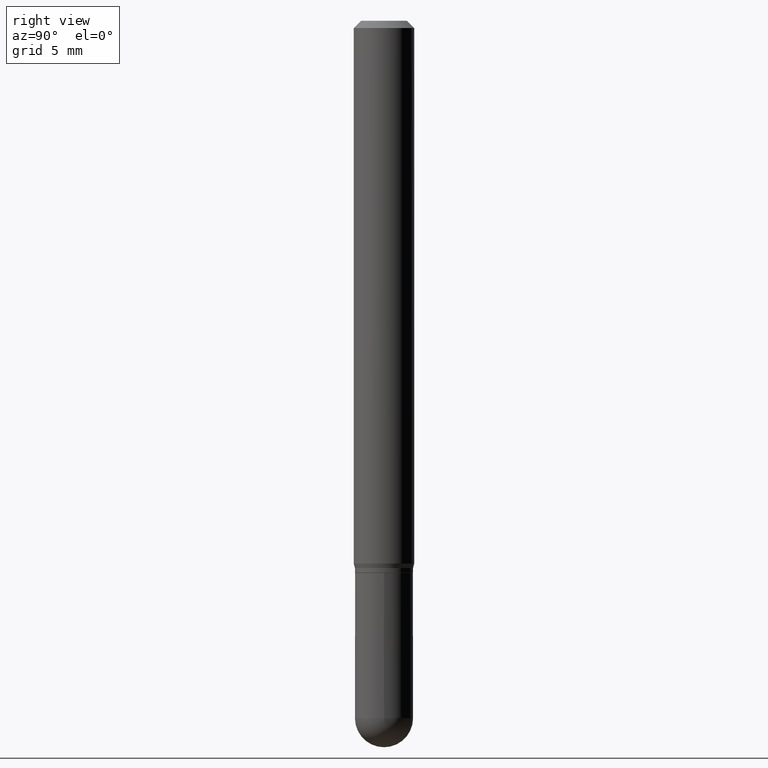
[diagram: clean part render]
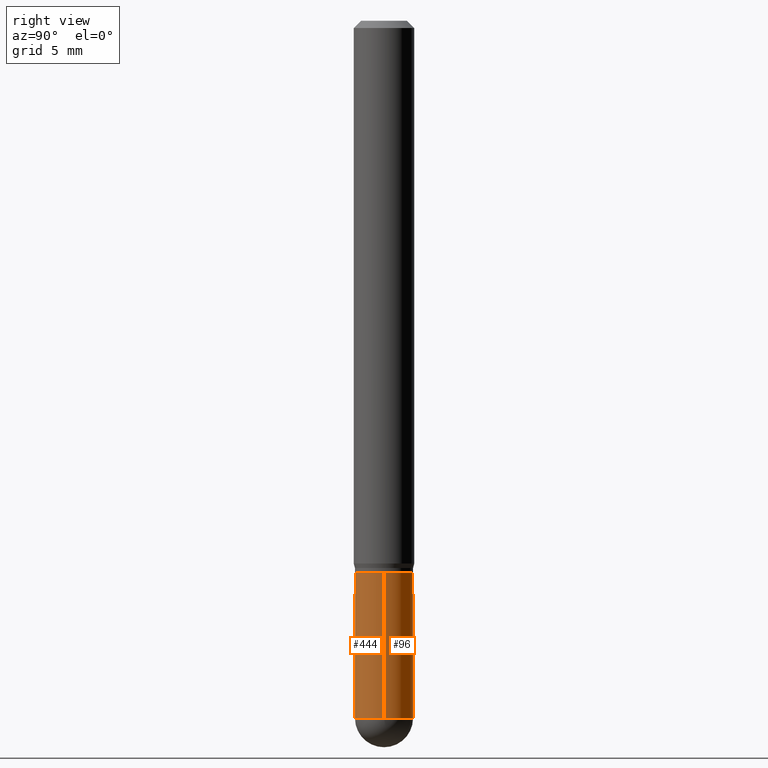
[diagram: same view with one multi-face feature highlighted, each face labeled with its STEP entity id]
A machine part, right view. The highlighted faces form ONE feature: a constant-radius fillet chain: 2 tangent blend faces with common blend radius 1.524 mm. The faces share edges in the B-rep.
Their STEP definitions:
[1] entity #96 (Cylinder):
#10 = CIRCLE ( 'NONE', #497, 0.06000000000000001166 ) ;
#19 = CARTESIAN_POINT ( 'NONE',  ( 4.263256414560955945E-16, 0.05999999999999502259, -1.440000000000000391 ) ) ;
#20 = CARTESIAN_POINT ( 'NONE',  ( -0.06000000000000001166, 4.263256414560601944E-16, -2.951361054152943763E-30 ) ) ;
#23 = EDGE_CURVE ( 'NONE', #158, #119, #67, .T. ) ;
#64 = CARTESIAN_POINT ( 'NONE',  ( 0.06000000000000001166, -4.189777606611760914E-16, 2.925706065477562106E-30 ) ) ;
#67 = CIRCLE ( 'NONE', #503, 0.06000000000000001166 ) ;
#93 = DIRECTION ( 'NONE',  ( -2.445468806185136597E-29, 3.491481338843145583E-15, 1.000000000000000000 ) ) ;
#94 = FACE_OUTER_BOUND ( 'NONE', #395, .T. ) ;
#96 = ADVANCED_FACE ( 'NONE', ( #94 ), #247, .T. ) ;
#98 = DIRECTION ( 'NONE',  ( -2.445468806185136597E-29, 3.491481338843145583E-15, 1.000000000000000000 ) ) ;
#117 = AXIS2_PLACEMENT_3D ( 'NONE', #362, #210, #369 ) ;
#119 = VERTEX_POINT ( 'NONE', #19 ) ;
#147 = VECTOR ( 'NONE', #330, 39.37007874015748143 ) ;
#152 = VERTEX_POINT ( 'NONE', #439 ) ;
#157 = VERTEX_POINT ( 'NONE', #492 ) ;
#158 = VERTEX_POINT ( 'NONE', #215 ) ;
#188 = EDGE_CURVE ( 'NONE', #119, #152, #10, .T. ) ;
#205 = EDGE_CURVE ( 'NONE', #158, #422, #491, .T. ) ;
#210 = DIRECTION ( 'NONE',  ( -2.445468806185136597E-29, 3.491481338843145583E-15, 1.000000000000000000 ) ) ;
#215 = CARTESIAN_POINT ( 'NONE',  ( 0.06000000000000001166, -4.922988687768835701E-15, -1.440000000000000169 ) ) ;
#227 = ORIENTED_EDGE ( 'NONE', *, *, #23, .T. ) ;
#247 = CYLINDRICAL_SURFACE ( 'NONE', #377, 0.06000000000000001166 ) ;
#250 = VECTOR ( 'NONE', #365, 39.37007874015748143 ) ;
#277 = DIRECTION ( 'NONE',  ( 1.000000000000000000, -6.982962677686266711E-15, 0.000000000000000000 ) ) ;
#330 = DIRECTION ( 'NONE',  ( -2.445468806185136877E-29, 3.491481338843145188E-15, 1.000000000000000000 ) ) ;
#346 = ORIENTED_EDGE ( 'NONE', *, *, #396, .T. ) ;
#350 = ORIENTED_EDGE ( 'NONE', *, *, #357, .F. ) ;
#355 = CARTESIAN_POINT ( 'NONE',  ( 3.521475080906597305E-29, -5.027733127934130649E-15, -1.440000000000000169 ) ) ;
#357 = EDGE_CURVE ( 'NONE', #422, #157, #400, .T. ) ;
#362 = CARTESIAN_POINT ( 'NONE',  ( 2.787834439051055989E-29, -3.980288726281186698E-15, -1.140000000000000124 ) ) ;
#365 = DIRECTION ( 'NONE',  ( -2.445468806185136877E-29, 3.491481338843145188E-15, 1.000000000000000000 ) ) ;
#366 = DIRECTION ( 'NONE',  ( 1.000000000000000000, -6.982962677686266711E-15, 4.876176775795935793E-29 ) ) ;
#369 = DIRECTION ( 'NONE',  ( 1.000000000000000000, -6.982962677686268288E-15, 0.000000000000000000 ) ) ;
#376 = CARTESIAN_POINT ( 'NONE',  ( 3.521475080906597305E-29, -5.027733127934130649E-15, -1.440000000000000169 ) ) ;
#377 = AXIS2_PLACEMENT_3D ( 'NONE', #407, #98, #366 ) ;
#393 = ORIENTED_EDGE ( 'NONE', *, *, #188, .T. ) ;
#395 = EDGE_LOOP ( 'NONE', ( #393, #346, #350, #505, #227 ) ) ;
#396 = EDGE_CURVE ( 'NONE', #152, #157, #486, .T. ) ;
#400 = CIRCLE ( 'NONE', #117, 0.05999999999999999778 ) ;
#407 = CARTESIAN_POINT ( 'NONE',  ( 0.000000000000000000, 0.000000000000000000, 0.000000000000000000 ) ) ;
#409 = DIRECTION ( 'NONE',  ( 1.000000000000000000, -6.982962677686266711E-15, 0.000000000000000000 ) ) ;
#417 = CARTESIAN_POINT ( 'NONE',  ( 0.05999999999999999778, -4.399266486942362543E-15, -1.140000000000000124 ) ) ;
#422 = VERTEX_POINT ( 'NONE', #417 ) ;
#431 = DIRECTION ( 'NONE',  ( -2.445468806185136597E-29, 3.491481338843145583E-15, 1.000000000000000000 ) ) ;
#439 = CARTESIAN_POINT ( 'NONE',  ( -0.06000000000000001166, -4.077685285651599366E-15, -1.440000000000000169 ) ) ;
#486 = LINE ( 'NONE', #20, #147 ) ;
#491 = LINE ( 'NONE', #64, #250 ) ;
#492 = CARTESIAN_POINT ( 'NONE',  ( -0.05999999999999999778, -4.077685285651597789E-15, -1.140000000000000124 ) ) ;
#497 = AXIS2_PLACEMENT_3D ( 'NONE', #376, #93, #409 ) ;
#503 = AXIS2_PLACEMENT_3D ( 'NONE', #355, #431, #277 ) ;
#505 = ORIENTED_EDGE ( 'NONE', *, *, #205, .F. ) ;
[2] entity #444 (Cylinder):
#14 = DIRECTION ( 'NONE',  ( 1.000000000000000000, -6.982962677686266711E-15, 0.000000000000000000 ) ) ;
#20 = CARTESIAN_POINT ( 'NONE',  ( -0.06000000000000001166, 4.263256414560601944E-16, -2.951361054152943763E-30 ) ) ;
#25 = DIRECTION ( 'NONE',  ( 1.000000000000000000, -6.982962677686268288E-15, 0.000000000000000000 ) ) ;
#27 = DIRECTION ( 'NONE',  ( -2.445468806185136597E-29, 3.491481338843145583E-15, 1.000000000000000000 ) ) ;
#33 = ORIENTED_EDGE ( 'NONE', *, *, #396, .F. ) ;
#34 = CARTESIAN_POINT ( 'NONE',  ( 0.000000000000000000, 0.000000000000000000, 0.000000000000000000 ) ) ;
#43 = ORIENTED_EDGE ( 'NONE', *, *, #344, .F. ) ;
#52 = AXIS2_PLACEMENT_3D ( 'NONE', #136, #172, #14 ) ;
#64 = CARTESIAN_POINT ( 'NONE',  ( 0.06000000000000001166, -4.189777606611760914E-16, 2.925706065477562106E-30 ) ) ;
#69 = DIRECTION ( 'NONE',  ( -2.445468806185136597E-29, 3.491481338843145583E-15, 1.000000000000000000 ) ) ;
#78 = ORIENTED_EDGE ( 'NONE', *, *, #375, .T. ) ;
#86 = CIRCLE ( 'NONE', #504, 0.06000000000000001166 ) ;
#103 = CARTESIAN_POINT ( 'NONE',  ( -4.189777606611411350E-16, -0.06000000000000507705, -1.439999999999999947 ) ) ;
#112 = CYLINDRICAL_SURFACE ( 'NONE', #282, 0.06000000000000001166 ) ;
#136 = CARTESIAN_POINT ( 'NONE',  ( 3.521475080906597305E-29, -5.027733127934130649E-15, -1.440000000000000169 ) ) ;
#147 = VECTOR ( 'NONE', #330, 39.37007874015748143 ) ;
#152 = VERTEX_POINT ( 'NONE', #439 ) ;
#157 = VERTEX_POINT ( 'NONE', #492 ) ;
#158 = VERTEX_POINT ( 'NONE', #215 ) ;
#168 = CIRCLE ( 'NONE', #52, 0.06000000000000001166 ) ;
#172 = DIRECTION ( 'NONE',  ( -2.445468806185136597E-29, 3.491481338843145583E-15, 1.000000000000000000 ) ) ;
#205 = EDGE_CURVE ( 'NONE', #158, #422, #491, .T. ) ;
#215 = CARTESIAN_POINT ( 'NONE',  ( 0.06000000000000001166, -4.922988687768835701E-15, -1.440000000000000169 ) ) ;
#223 = DIRECTION ( 'NONE',  ( 1.000000000000000000, -6.982962677686266711E-15, 0.000000000000000000 ) ) ;
#245 = CARTESIAN_POINT ( 'NONE',  ( 2.787834439051055989E-29, -3.980288726281186698E-15, -1.140000000000000124 ) ) ;
#250 = VECTOR ( 'NONE', #365, 39.37007874015748143 ) ;
#269 = AXIS2_PLACEMENT_3D ( 'NONE', #245, #488, #25 ) ;
#282 = AXIS2_PLACEMENT_3D ( 'NONE', #34, #27, #384 ) ;
#330 = DIRECTION ( 'NONE',  ( -2.445468806185136877E-29, 3.491481338843145188E-15, 1.000000000000000000 ) ) ;
#337 = CARTESIAN_POINT ( 'NONE',  ( 3.521475080906597305E-29, -5.027733127934130649E-15, -1.440000000000000169 ) ) ;
#344 = EDGE_CURVE ( 'NONE', #157, #422, #378, .T. ) ;
#365 = DIRECTION ( 'NONE',  ( -2.445468806185136877E-29, 3.491481338843145188E-15, 1.000000000000000000 ) ) ;
#375 = EDGE_CURVE ( 'NONE', #464, #158, #168, .T. ) ;
#378 = CIRCLE ( 'NONE', #269, 0.05999999999999999778 ) ;
#384 = DIRECTION ( 'NONE',  ( 1.000000000000000000, -6.982962677686266711E-15, 4.876176775795935793E-29 ) ) ;
#396 = EDGE_CURVE ( 'NONE', #152, #157, #486, .T. ) ;
#417 = CARTESIAN_POINT ( 'NONE',  ( 0.05999999999999999778, -4.399266486942362543E-15, -1.140000000000000124 ) ) ;
#422 = VERTEX_POINT ( 'NONE', #417 ) ;
#439 = CARTESIAN_POINT ( 'NONE',  ( -0.06000000000000001166, -4.077685285651599366E-15, -1.440000000000000169 ) ) ;
#444 = ADVANCED_FACE ( 'NONE', ( #502 ), #112, .T. ) ;
#462 = EDGE_LOOP ( 'NONE', ( #33, #510, #78, #507, #43 ) ) ;
#464 = VERTEX_POINT ( 'NONE', #103 ) ;
#486 = LINE ( 'NONE', #20, #147 ) ;
#488 = DIRECTION ( 'NONE',  ( -2.445468806185136597E-29, 3.491481338843145583E-15, 1.000000000000000000 ) ) ;
#491 = LINE ( 'NONE', #64, #250 ) ;
#492 = CARTESIAN_POINT ( 'NONE',  ( -0.05999999999999999778, -4.077685285651597789E-15, -1.140000000000000124 ) ) ;
#502 = FACE_OUTER_BOUND ( 'NONE', #462, .T. ) ;
#504 = AXIS2_PLACEMENT_3D ( 'NONE', #337, #69, #223 ) ;
#507 = ORIENTED_EDGE ( 'NONE', *, *, #205, .T. ) ;
#510 = ORIENTED_EDGE ( 'NONE', *, *, #511, .T. ) ;
#511 = EDGE_CURVE ( 'NONE', #152, #464, #86, .T. ) ;